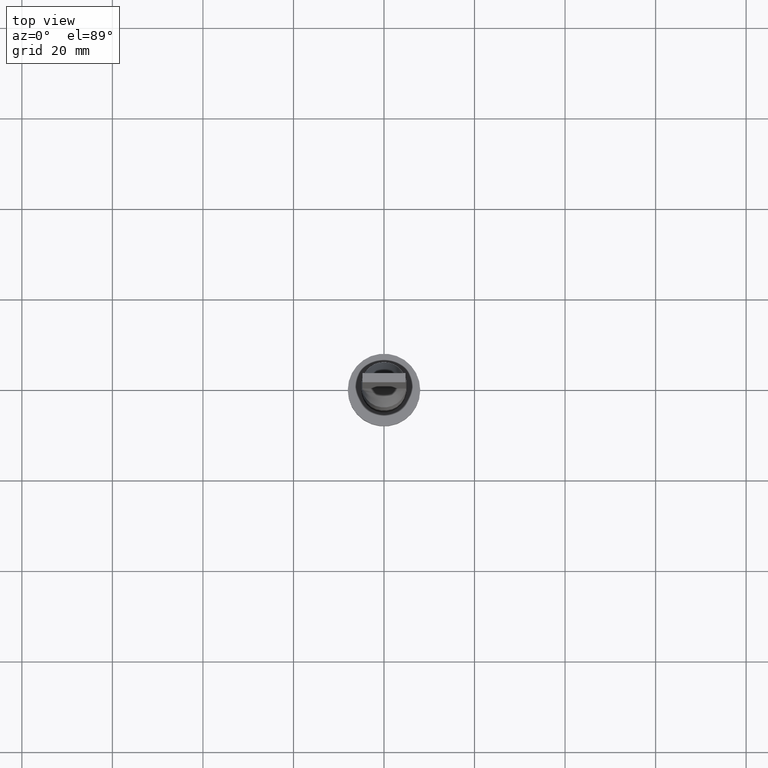
[diagram: clean part render]
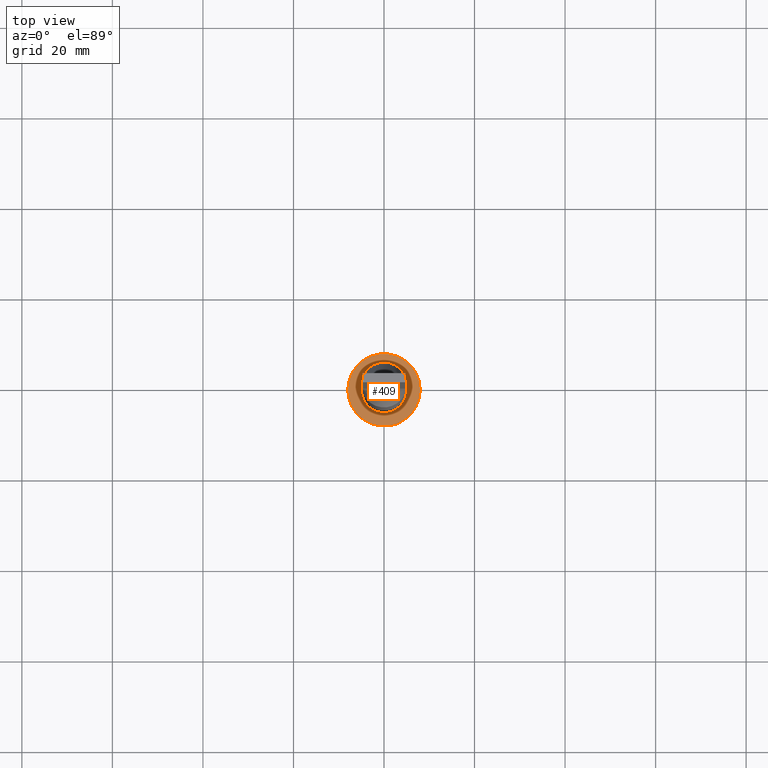
[diagram: same view with one face highlighted and labeled with its STEP entity id]
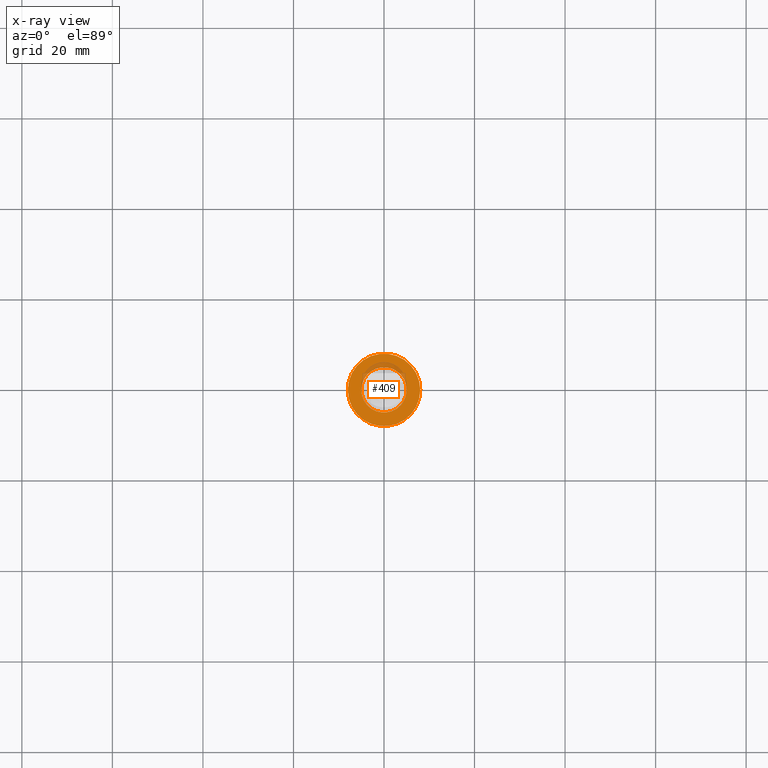
[diagram: x-ray of the same camera — body ghosted, the highlighted face saturated]
A machine part, top view. The second image highlights one B-rep face of the part: STEP entity #409.
The next image is the same camera in x-ray: the body ghosted, the highlighted face saturated — about 10% of this face is hidden behind the body in this view.
In plain terms, the highlighted planar face has unit normal (0, 0, 1).
Its self-contained STEP definition (entity closure, byte-faithful):
#31 = DIRECTION ( 'NONE',  ( 0.000000000000000000, 0.000000000000000000, 1.000000000000000000 ) ) ;
#38 = CIRCLE ( 'NONE', #308, 5.000000000000000000 ) ;
#39 = PLANE ( 'NONE',  #547 ) ;
#46 = DIRECTION ( 'NONE',  ( 0.000000000000000000, 0.000000000000000000, 1.000000000000000000 ) ) ;
#57 = ORIENTED_EDGE ( 'NONE', *, *, #365, .F. ) ;
#80 = CARTESIAN_POINT ( 'NONE',  ( 0.000000000000000000, 0.000000000000000000, 5.000000000000000000 ) ) ;
#104 = VERTEX_POINT ( 'NONE', #264 ) ;
#117 = EDGE_LOOP ( 'NONE', ( #150, #57 ) ) ;
#150 = ORIENTED_EDGE ( 'NONE', *, *, #243, .F. ) ;
#170 = CARTESIAN_POINT ( 'NONE',  ( 5.000000000000000000, 6.123233995736766282E-16, 5.000000000000000000 ) ) ;
#177 = FACE_BOUND ( 'NONE', #117, .T. ) ;
#184 = AXIS2_PLACEMENT_3D ( 'NONE', #460, #46, #458 ) ;
#214 = FACE_OUTER_BOUND ( 'NONE', #527, .T. ) ;
#216 = EDGE_CURVE ( 'NONE', #386, #322, #361, .T. ) ;
#227 = CARTESIAN_POINT ( 'NONE',  ( 0.000000000000000000, 0.000000000000000000, 5.000000000000000000 ) ) ;
#243 = EDGE_CURVE ( 'NONE', #104, #292, #288, .T. ) ;
#258 = CARTESIAN_POINT ( 'NONE',  ( 8.000000000000000000, 9.797174393178825657E-16, 5.000000000000000000 ) ) ;
#263 = CARTESIAN_POINT ( 'NONE',  ( 0.000000000000000000, 0.000000000000000000, 5.000000000000000000 ) ) ;
#264 = CARTESIAN_POINT ( 'NONE',  ( -5.000000000000000000, 0.000000000000000000, 5.000000000000000000 ) ) ;
#277 = CIRCLE ( 'NONE', #598, 8.000000000000000000 ) ;
#288 = CIRCLE ( 'NONE', #473, 5.000000000000000000 ) ;
#292 = VERTEX_POINT ( 'NONE', #170 ) ;
#308 = AXIS2_PLACEMENT_3D ( 'NONE', #263, #31, #493 ) ;
#309 = CARTESIAN_POINT ( 'NONE',  ( -8.000000000000000000, 0.000000000000000000, 5.000000000000000000 ) ) ;
#313 = EDGE_CURVE ( 'NONE', #322, #386, #277, .T. ) ;
#322 = VERTEX_POINT ( 'NONE', #258 ) ;
#323 = DIRECTION ( 'NONE',  ( 1.000000000000000000, 0.000000000000000000, 0.000000000000000000 ) ) ;
#361 = CIRCLE ( 'NONE', #184, 8.000000000000000000 ) ;
#364 = ORIENTED_EDGE ( 'NONE', *, *, #313, .T. ) ;
#365 = EDGE_CURVE ( 'NONE', #292, #104, #38, .T. ) ;
#386 = VERTEX_POINT ( 'NONE', #309 ) ;
#394 = DIRECTION ( 'NONE',  ( 1.000000000000000000, 0.000000000000000000, -0.000000000000000000 ) ) ;
#401 = DIRECTION ( 'NONE',  ( 0.000000000000000000, 0.000000000000000000, 1.000000000000000000 ) ) ;
#409 = ADVANCED_FACE ( 'NONE', ( #177, #214 ), #39, .T. ) ;
#449 = DIRECTION ( 'NONE',  ( 0.000000000000000000, 0.000000000000000000, 1.000000000000000000 ) ) ;
#458 = DIRECTION ( 'NONE',  ( 1.000000000000000000, 0.000000000000000000, 0.000000000000000000 ) ) ;
#460 = CARTESIAN_POINT ( 'NONE',  ( 0.000000000000000000, 0.000000000000000000, 5.000000000000000000 ) ) ;
#473 = AXIS2_PLACEMENT_3D ( 'NONE', #227, #555, #323 ) ;
#489 = CARTESIAN_POINT ( 'NONE',  ( 0.000000000000000000, 0.000000000000000000, 5.000000000000000000 ) ) ;
#493 = DIRECTION ( 'NONE',  ( 1.000000000000000000, 0.000000000000000000, 0.000000000000000000 ) ) ;
#527 = EDGE_LOOP ( 'NONE', ( #553, #364 ) ) ;
#547 = AXIS2_PLACEMENT_3D ( 'NONE', #80, #449, #394 ) ;
#553 = ORIENTED_EDGE ( 'NONE', *, *, #216, .T. ) ;
#555 = DIRECTION ( 'NONE',  ( 0.000000000000000000, 0.000000000000000000, 1.000000000000000000 ) ) ;
#587 = DIRECTION ( 'NONE',  ( 1.000000000000000000, 0.000000000000000000, 0.000000000000000000 ) ) ;
#598 = AXIS2_PLACEMENT_3D ( 'NONE', #489, #401, #587 ) ;